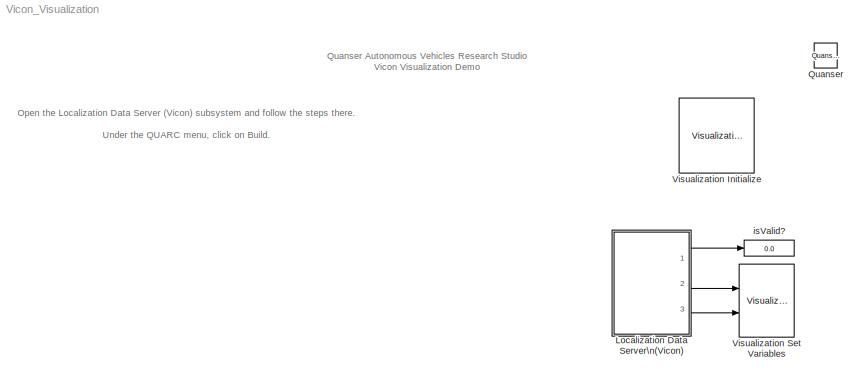
MODEL Vicon_Visualization
KIND model
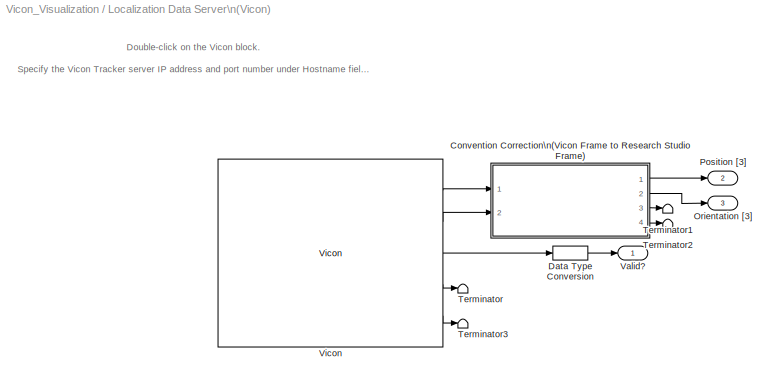
BLOCK [SubSystem] Localization Data Server\n(Vicon) 
  Ports = [0, 3]
  RequestExecContextInheritance = off
  SID = 165
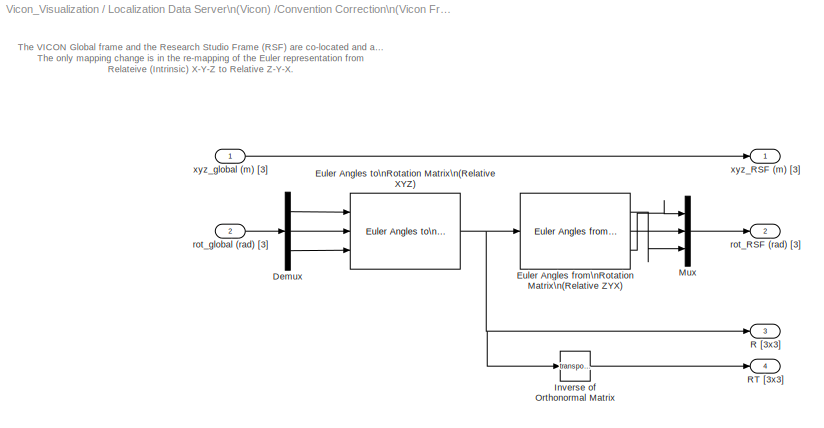
BLOCK [SubSystem] Localization Data Server\n(Vicon) /Convention Correction\n(Vicon Frame to Research Studio Frame)
  Ports = [2, 4]
  RequestExecContextInheritance = off
  SID = 248
BLOCK [Demux] Localization Data Server\n(Vicon) /Convention Correction\n(Vicon Frame to Research Studio Frame)/Demux
  Outputs = 3
  Ports = [1, 3]
  SID = 251
BLOCK [Reference] Localization Data Server\n(Vicon) /Convention Correction\n(Vicon Frame to Research Studio Frame)/Euler Angles from\nRotation Matrix\n(Relative ZYX)  REF=quarc_library/Math Operations/Matrices/Euler Angles from\nRotation Matrix
  MultiThreadCoSim = auto
  Ports = [1, 3]
  SID = 252
  SourceBlock = quarc_library/Math Operations/Matrices/Euler Angles from\nRotation Matrix
  SourceProductName = QUARC Targets
  SourceType = Euler Angles from Rotation Matrix
  menu_order = Relative Z-Y-X
BLOCK [Reference] Localization Data Server\n(Vicon) /Convention Correction\n(Vicon Frame to Research Studio Frame)/Euler Angles to\nRotation Matrix\n(Relative XYZ)  REF=quarc_library/Math Operations/Matrices/Euler Angles to\nRotation Matrix
  MultiThreadCoSim = auto
  Ports = [3, 1]
  SID = 253
  SourceBlock = quarc_library/Math Operations/Matrices/Euler Angles to\nRotation Matrix
  SourceProductName = QUARC Targets
  SourceType = Euler Angles to Rotation Matrix
  menu_order = Relative X-Y-Z
BLOCK [Math] Localization Data Server\n(Vicon) /Convention Correction\n(Vicon Frame to Research Studio Frame)/Inverse of Orthonormal Matrix
  Operator = transpose
  Ports = [1, 1]
  SID = 254
BLOCK [Mux] Localization Data Server\n(Vicon) /Convention Correction\n(Vicon Frame to Research Studio Frame)/Mux
  DisplayOption = bar
  Inputs = 3
  Ports = [3, 1]
  SID = 255
BLOCK [Outport] Localization Data Server\n(Vicon) /Convention Correction\n(Vicon Frame to Research Studio Frame)/R [3x3]
  Port = 3
  SID = 258
  VectorParamsAs1DForOutWhenUnconnected = off
BLOCK [Outport] Localization Data Server\n(Vicon) /Convention Correction\n(Vicon Frame to Research Studio Frame)/RT [3x3]
  Port = 4
  SID = 259
  VectorParamsAs1DForOutWhenUnconnected = off
BLOCK [Outport] Localization Data Server\n(Vicon) /Convention Correction\n(Vicon Frame to Research Studio Frame)/rot_RSF (rad) [3]
  Port = 2
  SID = 257
  VectorParamsAs1DForOutWhenUnconnected = off
BLOCK [Inport] Localization Data Server\n(Vicon) /Convention Correction\n(Vicon Frame to Research Studio Frame)/rot_global (rad) [3]
  Port = 2
  SID = 250
BLOCK [Outport] Localization Data Server\n(Vicon) /Convention Correction\n(Vicon Frame to Research Studio Frame)/xyz_RSF (m) [3]
  SID = 256
  VectorParamsAs1DForOutWhenUnconnected = off
BLOCK [Inport] Localization Data Server\n(Vicon) /Convention Correction\n(Vicon Frame to Research Studio Frame)/xyz_global (m) [3]
  SID = 249
BLOCK [DataTypeConversion] Localization Data Server\n(Vicon) /Data Type Conversion
  RndMeth = Floor
  SID = 166
  SaturateOnIntegerOverflow = off
BLOCK [Outport] Localization Data Server\n(Vicon) /Orientation [3]
  Port = 3
  SID = 173
  VectorParamsAs1DForOutWhenUnconnected = off
BLOCK [Outport] Localization Data Server\n(Vicon) /Position [3]
  Port = 2
  SID = 171
  VectorParamsAs1DForOutWhenUnconnected = off
BLOCK [Terminator] Localization Data Server\n(Vicon) /Terminator
  SID = 261
BLOCK [Terminator] Localization Data Server\n(Vicon) /Terminator1
  SID = 245
BLOCK [Terminator] Localization Data Server\n(Vicon) /Terminator2
  SID = 246
BLOCK [Terminator] Localization Data Server\n(Vicon) /Terminator3
  SID = 262
BLOCK [Outport] Localization Data Server\n(Vicon) /Valid?
  SID = 172
  VectorParamsAs1DForOutWhenUnconnected = off
BLOCK [Reference] Localization Data Server\n(Vicon) /Vicon  REF=quarc_library/Devices/Third-Party/Vicon/Vicon
  MultiThreadCoSim = auto
  Ports = [0, 5]
  SID = 247
  SourceBlock = quarc_library/Devices/Third-Party/Vicon/Vicon
  SourceProductName = QUARC Targets
  SourceType = Vicon
  active = on
  hostname = localhost:801
  marker_list = \\0
  num_markers = 0
  num_segments = 1
  sample_time = qc_get_step_size
  segment_list = ObjectName1.ObjectName1\\0\\0
  stream_mode = 2
  unlabeled_markers = []
BLOCK [Reference] Quanser  REF=quarc_library/Logos/Quanser
  Ports = []
  RTWMemSecDataConstants = Inherit from model
  RTWMemSecDataInternal = Inherit from model
  RTWMemSecDataParameters = Inherit from model
  RTWMemSecFuncExecute = Inherit from model
  RTWMemSecFuncInitTerm = Inherit from model
  SID = 162
  SourceBlock = quarc_library/Logos/Quanser
  SourceProductName = QUARC Targets
  SourceType = Powered by Quanser
BLOCK [Reference] Visualization Initialize  REF=quarc_library/User Interface/Visualization/Visualization Initialize
  AttributesFormatString = %<object_name>
  MultiThreadCoSim = auto
  Ports = []
  SID = 154
  SourceBlock = quarc_library/User Interface/Visualization/Visualization Initialize
  SourceProductName = QUARC Targets
  SourceType = Visualization Initialize
  apply_uri_to_all_configs = off
  client_receive_size = 1000000
  client_send_size = 1000
  close_on_stop = on
  derive_from_server = on
  initial_values = single([ 0 0 0 0 0 0 0 0 0 0 0 0 ])
  object_name = POSE_Check
  open_on_start = on
  scene_file = POSE_Check.xml
  server_receive_size = 1000
  server_send_size = 1000000
  uri = {'normal','';'Configuration','shmem://%m:2';}
  variables = [ 60 61 80 81 ]
BLOCK [Reference] Visualization Set Variables  REF=quarc_library/User Interface/Visualization/Visualization Set Variables
  AttributesFormatString = (%<object_name>)
  MultiThreadCoSim = auto
  Ports = [2]
  SID = 155
  SourceBlock = quarc_library/User Interface/Visualization/Visualization Set Variables
  SourceProductName = QUARC Targets
  SourceType = Visualization Set Variables
  actor_name = {'actor.RefFrame.BodyFixed.OptiTrack/Position';'actor.RefFrame.BodyFixed.OptiTrack/Orientation'}
  data_type = [ 0 0 ]
  length = [ 1 1 ]
  object_name = POSE_Check
  offset = [ 0 0 ]
  sample_time = visualization_get_frame_period
BLOCK [Display] isValid?
  Decimation = 1
  Ports = [1]
  SID = 188
ANNOTATION (root): \n \n Open the Localization Data Server (Vicon) subsystem and follow the steps there. \n Under the QUARC menu, click on Build. \n Place the QDrone in the workspace (no battery, QDrone is OFF). \n \n Under the QUARC menu, click on Start . \n The isValid? display should show 1, which indicates that the localization system is tracking the vehicle's pose. \n \n The Visualization should show 2 frames o...<+792ch>
ANNOTATION (root): \n \n Quanser Autonomous Vehicles Research Studio Vicon Visualization Demo
ANNOTATION Localization Data Server\n(Vicon) : \n \n Double-click on the Vicon block. \n Specify the Vicon Tracker server IP address and port number under Hostname field. \n Specify the object name corresponding to the vehicle to be tracked under the List of segments field. The format for the segment is <ObjectName>.<ObjectName> where <ObjectName> is the name given when defining the vehicle object in the Vicon Tracker server softwre. Click the...<+166ch>
ANNOTATION Localization Data Server\n(Vicon) /Convention Correction\n(Vicon Frame to Research Studio Frame): The VICON Global frame and the Research Studio Frame (RSF) are co-located and aligned.\nThe only mapping change is in the re-mapping of the Euler representation from \nRelateive (Intrinsic) X-Y-Z to Relative Z-Y-X.
LINE Localization Data Server\n(Vicon) /Convention Correction\n(Vicon Frame to Research Studio Frame)/Demux:1 -> Localization Data Server\n(Vicon) /Convention Correction\n(Vicon Frame to Research Studio Frame)/Euler Angles to\nRotation Matrix\n(Relative XYZ):1
LINE Localization Data Server\n(Vicon) /Convention Correction\n(Vicon Frame to Research Studio Frame)/Demux:2 -> Localization Data Server\n(Vicon) /Convention Correction\n(Vicon Frame to Research Studio Frame)/Euler Angles to\nRotation Matrix\n(Relative XYZ):2
LINE Localization Data Server\n(Vicon) /Convention Correction\n(Vicon Frame to Research Studio Frame)/Demux:3 -> Localization Data Server\n(Vicon) /Convention Correction\n(Vicon Frame to Research Studio Frame)/Euler Angles to\nRotation Matrix\n(Relative XYZ):3
LINE Localization Data Server\n(Vicon) /Convention Correction\n(Vicon Frame to Research Studio Frame)/Euler Angles from\nRotation Matrix\n(Relative ZYX):1 -> Localization Data Server\n(Vicon) /Convention Correction\n(Vicon Frame to Research Studio Frame)/Mux:3
LINE Localization Data Server\n(Vicon) /Convention Correction\n(Vicon Frame to Research Studio Frame)/Euler Angles from\nRotation Matrix\n(Relative ZYX):2 -> Localization Data Server\n(Vicon) /Convention Correction\n(Vicon Frame to Research Studio Frame)/Mux:2
LINE Localization Data Server\n(Vicon) /Convention Correction\n(Vicon Frame to Research Studio Frame)/Euler Angles from\nRotation Matrix\n(Relative ZYX):3 -> Localization Data Server\n(Vicon) /Convention Correction\n(Vicon Frame to Research Studio Frame)/Mux:1
NET Localization Data Server\n(Vicon) /Convention Correction\n(Vicon Frame to Research Studio Frame)/Euler Angles to\nRotation Matrix\n(Relative XYZ):1 -> Localization Data Server\n(Vicon) /Convention Correction\n(Vicon Frame to Research Studio Frame)/Euler Angles from\nRotation Matrix\n(Relative ZYX):1, Localization Data Server\n(Vicon) /Convention Correction\n(Vicon Frame to Research Studio Frame)/Inverse of Orthonormal Matrix:1, Localization Data Server\n(Vicon) /Convention Correction\n(Vicon Frame to Research Studio Frame)/R [3x3]:1
LINE Localization Data Server\n(Vicon) /Convention Correction\n(Vicon Frame to Research Studio Frame)/Inverse of Orthonormal Matrix:1 -> Localization Data Server\n(Vicon) /Convention Correction\n(Vicon Frame to Research Studio Frame)/RT [3x3]:1
LINE Localization Data Server\n(Vicon) /Convention Correction\n(Vicon Frame to Research Studio Frame)/Mux:1 -> Localization Data Server\n(Vicon) /Convention Correction\n(Vicon Frame to Research Studio Frame)/rot_RSF (rad) [3]:1
LINE Localization Data Server\n(Vicon) /Convention Correction\n(Vicon Frame to Research Studio Frame)/rot_global (rad) [3]:1 -> Localization Data Server\n(Vicon) /Convention Correction\n(Vicon Frame to Research Studio Frame)/Demux:1
LINE Localization Data Server\n(Vicon) /Convention Correction\n(Vicon Frame to Research Studio Frame)/xyz_global (m) [3]:1 -> Localization Data Server\n(Vicon) /Convention Correction\n(Vicon Frame to Research Studio Frame)/xyz_RSF (m) [3]:1
LINE Localization Data Server\n(Vicon) /Convention Correction\n(Vicon Frame to Research Studio Frame):1 -> Localization Data Server\n(Vicon) /Position [3]:1
LINE Localization Data Server\n(Vicon) /Convention Correction\n(Vicon Frame to Research Studio Frame):2 -> Localization Data Server\n(Vicon) /Orientation [3]:1
LINE Localization Data Server\n(Vicon) /Convention Correction\n(Vicon Frame to Research Studio Frame):3 -> Localization Data Server\n(Vicon) /Terminator1:1
LINE Localization Data Server\n(Vicon) /Convention Correction\n(Vicon Frame to Research Studio Frame):4 -> Localization Data Server\n(Vicon) /Terminator2:1
LINE Localization Data Server\n(Vicon) /Data Type Conversion:1 -> Localization Data Server\n(Vicon) /Valid?:1
LINE Localization Data Server\n(Vicon) /Vicon:1 -> Localization Data Server\n(Vicon) /Convention Correction\n(Vicon Frame to Research Studio Frame):1
LINE Localization Data Server\n(Vicon) /Vicon:2 -> Localization Data Server\n(Vicon) /Convention Correction\n(Vicon Frame to Research Studio Frame):2
LINE Localization Data Server\n(Vicon) /Vicon:3 -> Localization Data Server\n(Vicon) /Data Type Conversion:1
LINE Localization Data Server\n(Vicon) /Vicon:4 -> Localization Data Server\n(Vicon) /Terminator:1
LINE Localization Data Server\n(Vicon) /Vicon:5 -> Localization Data Server\n(Vicon) /Terminator3:1
LINE Localization Data Server\n(Vicon) :1 -> isValid?:1
LINE Localization Data Server\n(Vicon) :2 -> Visualization Set Variables:1
LINE Localization Data Server\n(Vicon) :3 -> Visualization Set Variables:2
note: NET lines group one-source signal fan-out (src -> all destinations, sorted); 1:1 wires keep LINE
